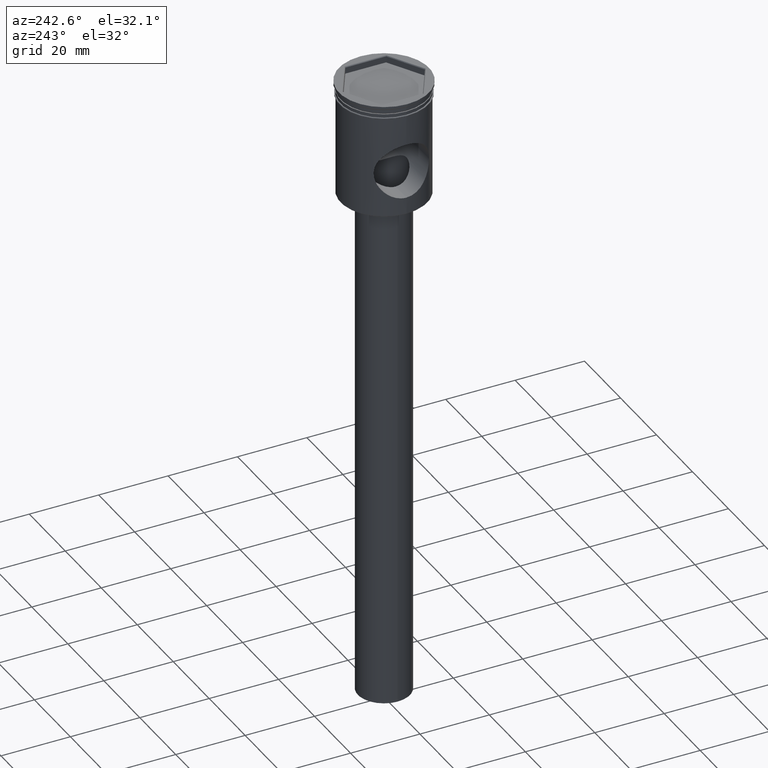
[diagram: clean part render]
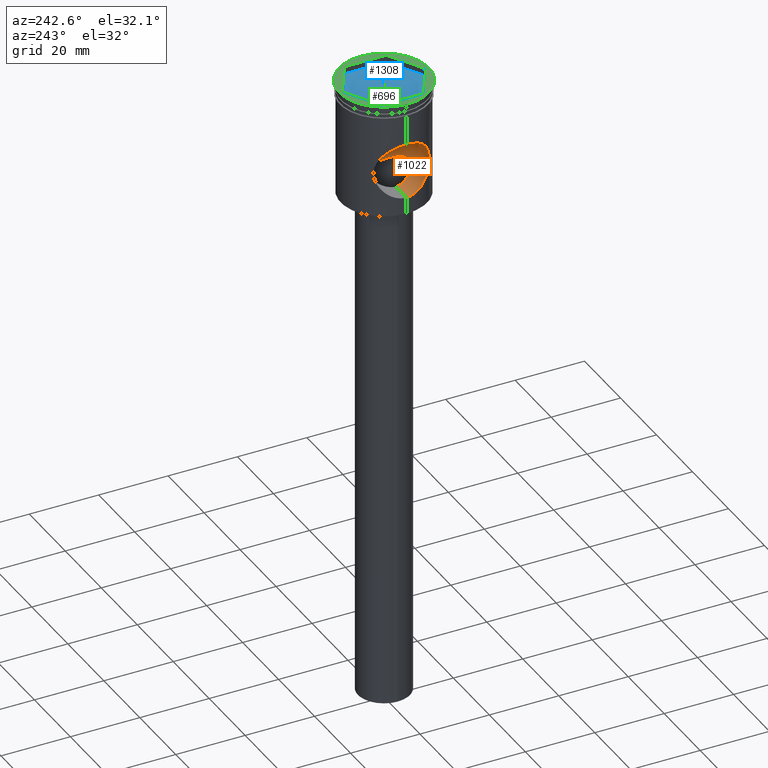
[diagram: same view with three faces highlighted in distinct colors, each labeled with its STEP entity id]
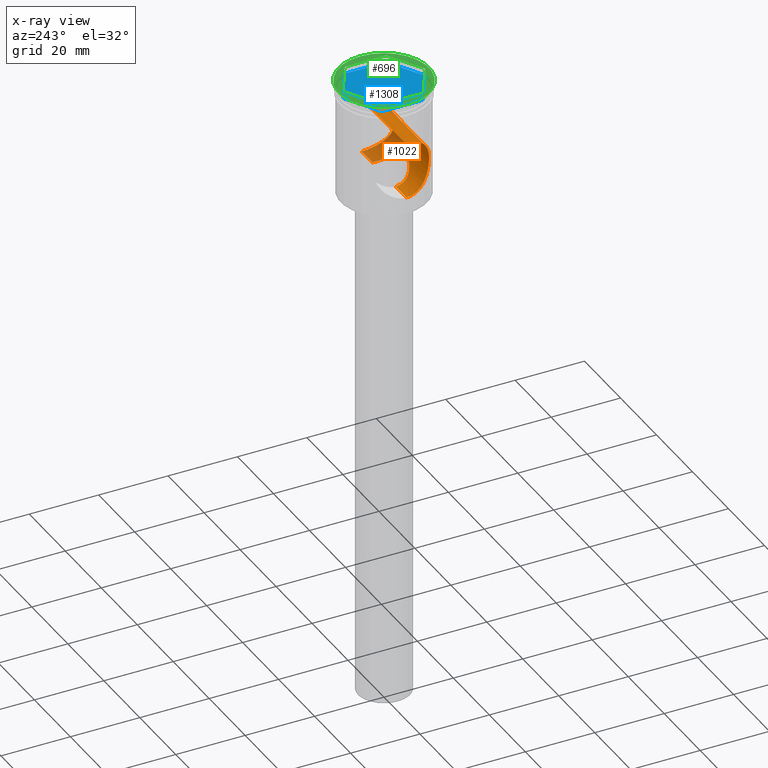
[diagram: x-ray of the same camera — body ghosted, the three highlighted faces saturated]
A machine part, auxiliary view with three faces highlighted in distinct colors.
The next image is the same camera in x-ray (body ghosted, the three faces saturated) — at least one of them is partly hidden behind the body in this view.
Their STEP definitions:

[orange] entity #1022 — the highlighted cylindrical surface (edge-blend (fillet) strip) has radius 8 mm, axis along (1, -0, -0).
#7 = CARTESIAN_POINT ( 'NONE',  ( 5.460048327681611191, -3.532776693708767013, -27.68026075794534790 ) ) ;
#41 = CARTESIAN_POINT ( 'NONE',  ( 11.97168173856675288, -3.603696557166354619, -13.35287981243517130 ) ) ;
#47 = CARTESIAN_POINT ( 'NONE',  ( 9.604845950803451160, -7.999808392904740550, -19.96072037956294309 ) ) ;
#51 = CARTESIAN_POINT ( 'NONE',  ( -9.952560460729568348, -7.563483000275684098, -17.88020587650935056 ) ) ;
#57 = CARTESIAN_POINT ( 'NONE',  ( 10.02253038761470627, -7.470924704462466259, -23.37288695449093723 ) ) ;
#63 = CARTESIAN_POINT ( 'NONE',  ( 11.82426725651903432, -4.061341696050346783, -13.60264837205234123 ) ) ;
#64 = CARTESIAN_POINT ( 'NONE',  ( -6.257325268433448606, -1.773333115719714304, -28.30400362435442929 ) ) ;
#74 = CARTESIAN_POINT ( 'NONE',  ( -9.778867081615889134, -7.786427190026567580, -18.64438907348872476 ) ) ;
#76 = CARTESIAN_POINT ( 'NONE',  ( -13.00000000000000178, 0.000000000000000000, -20.50000000000000355 ) ) ;
#78 = VECTOR ( 'NONE', #1514, 1000.000000000000000 ) ;
#80 = ORIENTED_EDGE ( 'NONE', *, *, #1377, .T. ) ;
#91 = CARTESIAN_POINT ( 'NONE',  ( -6.452300104651071955, -0.9033307322908493697, -28.46110773218289580 ) ) ;
#97 = CARTESIAN_POINT ( 'NONE',  ( 12.49104983426664894, -0.5449417703514889411, -28.48603655335807616 ) ) ;
#106 = CARTESIAN_POINT ( 'NONE',  ( 3.786615532826517860, -5.286943772991308244, -26.50592529537262720 ) ) ;
#123 = CARTESIAN_POINT ( 'NONE',  ( 0.4524990572914348030, -6.488138714140404772, -25.18034597257065954 ) ) ;
#171 = CARTESIAN_POINT ( 'NONE',  ( 10.76964293615448476, -6.354292206984882618, -15.61311065325000591 ) ) ;
#173 = CARTESIAN_POINT ( 'NONE',  ( -9.951847861737379120, -7.567903109691756391, -23.14472692481474425 ) ) ;
#179 = CARTESIAN_POINT ( 'NONE',  ( 11.74577852983650317, -4.282367724400620190, -27.26220930574857704 ) ) ;
#189 = CARTESIAN_POINT ( 'NONE',  ( -11.50119995780601201, -4.917095492503143817, -14.16884486330757653 ) ) ;
#191 = CARTESIAN_POINT ( 'NONE',  ( 9.780592607289705143, -7.784260626568321406, -22.36450508717211960 ) ) ;
#193 = CARTESIAN_POINT ( 'NONE',  ( -12.32937529947439792, -2.124696089697953205, -28.23112845639076340 ) ) ;
#203 = CARTESIAN_POINT ( 'NONE',  ( -6.500000000000000888, 0.000000000000000000, -28.50000000000000355 ) ) ;
#216 = B_SPLINE_CURVE_WITH_KNOTS ( 'NONE', 3,
 ( #430, #1236, #523, #193, #1160, #422, #884, #513, #786, #668, #1150, #1018, #299, #640, #282, #173, #1383, #1506, #653, #1122, #406, #905, #773, #74, #1135, #51, #411, #992, #1363, #912, #289, #1004, #189, #550, #1390, #804, #313, #1267, #1011, #1242, #1144, #1489, #894, #1496 ),
 .UNSPECIFIED., .F., .F.,
 ( 4, 2, 2, 2, 2, 2, 2, 2, 2, 2, 2, 2, 2, 2, 2, 2, 2, 2, 2, 2, 2, 4 ),
 ( 0.000000000000000000, 0.001610624516364221083, 0.003221249032728443033, 0.004831873549092664116, 0.006442498065456886934, 0.007247810323638999644, 0.008053122581821111486, 0.009663747098185335171, 0.01127437161454955886, 0.01207968387273167070, 0.01288499613091378254, 0.01449562064727802010, 0.01530093290546014062, 0.01610624516364226114, 0.01771686968000651952, 0.01932749419637077096, 0.02093811871273502934, 0.02174343097091715679, 0.02254874322909928425, 0.02415936774546353222, 0.02496468000364565967, 0.02576999226182778366 ),
 .UNSPECIFIED. ) ;
#219 = CARTESIAN_POINT ( 'NONE',  ( 6.132621783209935451, -2.197094703484181899, -28.20375196833109754 ) ) ;
#222 = CARTESIAN_POINT ( 'NONE',  ( 6.500000000000000888, -1.382494513617927609E-22, -28.50000000000000711 ) ) ;
#242 = CARTESIAN_POINT ( 'NONE',  ( 5.570925321596055468, -3.355586592393692502, -27.76504491683394349 ) ) ;
#250 = VERTEX_POINT ( 'NONE', #203 ) ;
#280 = CARTESIAN_POINT ( 'NONE',  ( -12.49999999999999645, 1.530843252841608374E-15, -12.50000000000000178 ) ) ;
#282 = CARTESIAN_POINT ( 'NONE',  ( -10.24633185769106802, -7.164154995734958398, -24.09758546550434133 ) ) ;
#288 = CARTESIAN_POINT ( 'NONE',  ( 10.77171733329285352, -6.344673314144587017, -25.37958406506654541 ) ) ;
#289 = CARTESIAN_POINT ( 'NONE',  ( -10.95569943340932717, -6.032167288263486249, -15.22028665405100689 ) ) ;
#299 = CARTESIAN_POINT ( 'NONE',  ( -10.68141965030588025, -6.495024738260811503, -25.17753358840529643 ) ) ;
#306 = CARTESIAN_POINT ( 'NONE',  ( -3.281965803216359667, -5.624989767360222714, -26.19662395985578840 ) ) ;
#308 = B_SPLINE_CURVE_WITH_KNOTS ( 'NONE', 3,
 ( #418, #1370, #1017, #782, #1234, #659, #1141, #1149, #41, #63, #1495, #1361, #990, #883, #902, #1469, #171, #1481, #639, #1121, #1488, #529, #47, #1029, #520, #1381, #794, #191, #410, #1002, #57, #1505, #429, #403, #288, #910, #771, #756, #1241, #179, #1008, #892, #947, #1550, #682, #557, #802, #97, #581, #1266 ),
 .UNSPECIFIED., .F., .F.,
 ( 4, 2, 2, 2, 2, 2, 2, 2, 2, 2, 2, 2, 2, 2, 2, 2, 2, 2, 2, 2, 2, 2, 2, 2, 4 ),
 ( 0.02576999226182778019, 0.02657439273090745485, 0.02737879319998712951, 0.02898759413814647884, 0.02979199460722615350, 0.03059639507630582816, 0.03140079554538549589, 0.03220519601446517055, 0.03381399695262450600, 0.03542279789078385532, 0.03703159882894319771, 0.03864039976710254010, 0.03944480023618220782, 0.04024920070526187554, 0.04105360117434153633, 0.04185800164342120405, 0.04346680258158053950, 0.04427120305066021416, 0.04507560351973988189, 0.04668440445789922427, 0.04748880492697889200, 0.04829320539605856666, 0.04990200633421790904, 0.05070640680329758371, 0.05151080727237725143 ),
 .UNSPECIFIED. ) ;
#313 = CARTESIAN_POINT ( 'NONE',  ( -12.03968295628938101, -3.370349911399050935, -13.23978673405735762 ) ) ;
#329 = CARTESIAN_POINT ( 'NONE',  ( -3.950476954517371020, -5.177406807294167912, -26.60626671336047977 ) ) ;
#356 = CARTESIAN_POINT ( 'NONE',  ( 4.412405615134871617, -4.777197050673709811, -26.91939816903312988 ) ) ;
#364 = CARTESIAN_POINT ( 'NONE',  ( 6.500000000000000888, -1.382494513617927609E-22, -28.50000000000000711 ) ) ;
#381 = VERTEX_POINT ( 'NONE', #222 ) ;
#403 = CARTESIAN_POINT ( 'NONE',  ( 10.68057655226026625, -6.496405684036827388, -25.17560278568680232 ) ) ;
#406 = CARTESIAN_POINT ( 'NONE',  ( -9.604895432773121300, -7.999748985399198986, -20.77841958597585048 ) ) ;
#410 = CARTESIAN_POINT ( 'NONE',  ( 9.833011243020196801, -7.718267162390879399, -22.62081358739450465 ) ) ;
#411 = CARTESIAN_POINT ( 'NONE',  ( -10.02037738876441075, -7.473797691934477072, -17.63469963449612266 ) ) ;
#415 = DIRECTION ( 'NONE',  ( 0.000000000000000000, 0.000000000000000000, -1.000000000000000000 ) ) ;
#418 = CARTESIAN_POINT ( 'NONE',  ( 12.49999999999999645, -3.475392982267206074E-20, -12.50000000000000178 ) ) ;
#420 = CARTESIAN_POINT ( 'NONE',  ( -5.778738657444614013, -2.983484102018041373, -27.92559829598778265 ) ) ;
#422 = CARTESIAN_POINT ( 'NONE',  ( -11.97893811598799019, -3.606041726093998090, -27.66040104288468982 ) ) ;
#429 = CARTESIAN_POINT ( 'NONE',  ( 10.41397768299478166, -6.921782864204724994, -24.54315654720842943 ) ) ;
#430 = CARTESIAN_POINT ( 'NONE',  ( -12.49999999999999645, 0.000000000000000000, -28.50000000000000355 ) ) ;
#461 = CARTESIAN_POINT ( 'NONE',  ( 5.874374812001469159, -2.790750676093712634, -28.00036436083563629 ) ) ;
#469 = CARTESIAN_POINT ( 'NONE',  ( 4.845257006710340875, -4.351692134409510082, -27.22189806687991265 ) ) ;
#488 = EDGE_CURVE ( 'NONE', #690, #753, #216, .T. ) ;
#513 = CARTESIAN_POINT ( 'NONE',  ( -11.50038868166273787, -4.919615502726673029, -26.82980181432884592 ) ) ;
#520 = CARTESIAN_POINT ( 'NONE',  ( 9.615781582082341572, -7.986738915949614714, -21.03451077291008176 ) ) ;
#523 = CARTESIAN_POINT ( 'NONE',  ( -12.46447579769008307, -1.079199628273470823, -28.44481018307722309 ) ) ;
#529 = CARTESIAN_POINT ( 'NONE',  ( 9.650481006454375787, -7.945901119098954801, -19.42646661241496986 ) ) ;
#532 = FACE_OUTER_BOUND ( 'NONE', #806, .T. ) ;
#536 = CARTESIAN_POINT ( 'NONE',  ( -5.873565130929282674, -2.792409734417655276, -27.99973087264607585 ) ) ;
#550 = CARTESIAN_POINT ( 'NONE',  ( -11.74563317290945186, -4.282692903467039791, -13.73805650301568271 ) ) ;
#557 = CARTESIAN_POINT ( 'NONE',  ( 12.42914744973298191, -1.355224675475571683, -28.38894657095907803 ) ) ;
#565 = CARTESIAN_POINT ( 'NONE',  ( -6.314744280824636569, -1.556775652073180582, -28.35017581032061429 ) ) ;
#581 = CARTESIAN_POINT ( 'NONE',  ( 12.50000000000000178, -0.2724455289350958820, -28.50000000000001066 ) ) ;
#582 = CARTESIAN_POINT ( 'NONE',  ( 2.161611939864988230, -6.133716075550486480, -25.63690197228879697 ) ) ;
#602 = CARTESIAN_POINT ( 'NONE',  ( 6.500000000000004441, -0.4507598041374321629, -28.50000000000000355 ) ) ;
#608 = CARTESIAN_POINT ( 'NONE',  ( 2.359926253138728391, -6.060024045516307467, -25.72409407202624720 ) ) ;
#609 = CARTESIAN_POINT ( 'NONE',  ( -13.00000000000000178, 0.000000000000000000, -28.50000000000000355 ) ) ;
#615 = ORIENTED_EDGE ( 'NONE', *, *, #731, .F. ) ;
#639 = CARTESIAN_POINT ( 'NONE',  ( 10.24171529436143047, -7.170737983946684047, -16.91536847051582981 ) ) ;
#640 = CARTESIAN_POINT ( 'NONE',  ( -10.41453676133786210, -6.920961814154464875, -24.54462048307798838 ) ) ;
#653 = CARTESIAN_POINT ( 'NONE',  ( -9.662429422409402946, -7.930242071786067548, -21.58801890745425922 ) ) ;
#659 = CARTESIAN_POINT ( 'NONE',  ( 12.32814927920563264, -2.133064077394895897, -12.77081634138414401 ) ) ;
#668 = CARTESIAN_POINT ( 'NONE',  ( -11.04973041360231534, -5.847541344671410180, -25.96539333561140950 ) ) ;
#682 = CARTESIAN_POINT ( 'NONE',  ( 12.32614486164619905, -2.144181392186814250, -28.22599079984304637 ) ) ;
#687 = ORIENTED_EDGE ( 'NONE', *, *, #1118, .F. ) ;
#690 = VERTEX_POINT ( 'NONE', #1464 ) ;
#697 = CARTESIAN_POINT ( 'NONE',  ( -2.170115222478395722, -6.140890886714586827, -25.63309683516175852 ) ) ;
#699 = VECTOR ( 'NONE', #1094, 1000.000000000000000 ) ;
#707 = CARTESIAN_POINT ( 'NONE',  ( 0.2279178920779981743, -6.499906671025888372, -25.16381960342393143 ) ) ;
#715 = CARTESIAN_POINT ( 'NONE',  ( 4.260691249340575304, -4.912960556298993531, -26.81582997972560634 ) ) ;
#731 = EDGE_CURVE ( 'NONE', #381, #1541, #966, .T. ) ;
#753 = VERTEX_POINT ( 'NONE', #280 ) ;
#756 = CARTESIAN_POINT ( 'NONE',  ( 11.32275814528974323, -5.311017539796695885, -26.50426606429732601 ) ) ;
#771 = CARTESIAN_POINT ( 'NONE',  ( 11.04913184632835765, -5.848685773200742233, -25.96419292266336853 ) ) ;
#773 = CARTESIAN_POINT ( 'NONE',  ( -9.650015180279874372, -7.946443617263751591, -19.43182631452544484 ) ) ;
#782 = CARTESIAN_POINT ( 'NONE',  ( 12.45680753857802969, -1.072351860696455050, -12.56763034230891307 ) ) ;
#783 = LINE ( 'NONE', #1165, #78 ) ;
#786 = CARTESIAN_POINT ( 'NONE',  ( -11.32278361962054980, -5.310903790031504812, -26.50427824932999243 ) ) ;
#794 = CARTESIAN_POINT ( 'NONE',  ( 9.694572521403603815, -7.891132293869996595, -21.84205955273027655 ) ) ;
#802 = CARTESIAN_POINT ( 'NONE',  ( 12.45574482229450020, -1.085222749987466040, -28.43070192023093412 ) ) ;
#804 = CARTESIAN_POINT ( 'NONE',  ( -11.97039897339417713, -3.607881330226538452, -13.35503377591461849 ) ) ;
#806 = EDGE_LOOP ( 'NONE', ( #1213, #80, #1172, #615, #1322, #687 ) ) ;
#817 = EDGE_CURVE ( 'NONE', #1404, #1541, #308, .T. ) ;
#829 = CARTESIAN_POINT ( 'NONE',  ( -0.4497550855590497498, -6.488366471176499672, -25.18003099772318265 ) ) ;
#835 = CARTESIAN_POINT ( 'NONE',  ( 3.947926699380110982, -5.167644156313274451, -26.60920155456273406 ) ) ;
#849 = CARTESIAN_POINT ( 'NONE',  ( 3.286837574919811988, -5.622065933885316724, -26.19947603596326857 ) ) ;
#883 = CARTESIAN_POINT ( 'NONE',  ( 11.32051845556725311, -5.304942531477345291, -14.50641544213543632 ) ) ;
#884 = CARTESIAN_POINT ( 'NONE',  ( -11.83084558445469980, -4.061114290533304860, -27.41204444593460465 ) ) ;
#892 = CARTESIAN_POINT ( 'NONE',  ( 11.97255694559600769, -3.600821400007698792, -27.64858792036709190 ) ) ;
#894 = CARTESIAN_POINT ( 'NONE',  ( -12.50000000000000000, -0.2689421781267052336, -12.50000000000000178 ) ) ;
#902 = CARTESIAN_POINT ( 'NONE',  ( 11.22925266099212926, -5.494954958430611214, -14.68017047912133144 ) ) ;
#904 = CARTESIAN_POINT ( 'NONE',  ( -5.571918240676929202, -3.353911891694667080, -27.76580776398056472 ) ) ;
#905 = CARTESIAN_POINT ( 'NONE',  ( -9.604276544737977872, -8.000492014107765115, -19.96508625629939004 ) ) ;
#909 = CARTESIAN_POINT ( 'NONE',  ( -13.00000000000000178, 9.797174393178827630E-16, -12.50000000000000178 ) ) ;
#910 = CARTESIAN_POINT ( 'NONE',  ( 10.95618371808392588, -6.020532543485915156, -25.77431588019688036 ) ) ;
#911 = CARTESIAN_POINT ( 'NONE',  ( -2.928534602587695268, -5.817527485350904470, -25.99687165202796635 ) ) ;
#912 = CARTESIAN_POINT ( 'NONE',  ( -10.77000853576665840, -6.353706358841932911, -15.61224821672882968 ) ) ;
#924 = CARTESIAN_POINT ( 'NONE',  ( -5.459419164172166994, -3.533838421339083880, -27.67977549627449463 ) ) ;
#928 = CARTESIAN_POINT ( 'NONE',  ( 12.49999999999999645, 0.000000000000000000, -28.50000000000000355 ) ) ;
#933 = CARTESIAN_POINT ( 'NONE',  ( -0.8997665330375742565, -6.441397308604645211, -25.24446944522125946 ) ) ;
#940 = CARTESIAN_POINT ( 'NONE',  ( 6.453317410054072667, -0.8987257197366886885, -28.46192756465547902 ) ) ;
#947 = CARTESIAN_POINT ( 'NONE',  ( 12.04078069653766825, -3.366168072378722176, -27.76202050384523901 ) ) ;
#966 = LINE ( 'NONE', #609, #699 ) ;
#990 = CARTESIAN_POINT ( 'NONE',  ( 11.49685725809058567, -4.911092195449596076, -14.17966420493785407 ) ) ;
#992 = CARTESIAN_POINT ( 'NONE',  ( -10.24149294623593143, -7.171072586796539028, -16.91585289741308884 ) ) ;
#997 = B_SPLINE_CURVE_WITH_KNOTS ( 'NONE', 3,
 ( #1389, #1254, #91, #565, #64, #1045, #1523, #536, #420, #904, #924, #1382, #1159, #1405, #329, #306, #911, #697, #1313, #1536, #933, #829, #1065, #707, #123, #1177, #1210, #1551, #1289, #582, #608, #1079, #849, #106, #835, #715, #356, #469, #1201, #7, #242, #1412, #461, #219, #1441, #940, #602, #364 ),
 .UNSPECIFIED., .F., .F.,
 ( 4, 2, 2, 2, 2, 2, 2, 2, 2, 2, 2, 2, 2, 2, 2, 2, 2, 2, 2, 2, 2, 2, 2, 4 ),
 ( 0.000000000000000000, 0.001349295505266007123, 0.002023943257899011444, 0.002698591010532015982, 0.003373238763165020086, 0.004047886515798024623, 0.005397182021064039770, 0.006746477526330054049, 0.008095773031596068328, 0.009445068536862083475, 0.01011971628949508845, 0.01079436404212809342, 0.01146901179476110012, 0.01214365954739410509, 0.01281830730002711180, 0.01349295505266011677, 0.01484225055792612671, 0.01551689831055913169, 0.01619154606319213319, 0.01754084156845813966, 0.01821548932109114116, 0.01889013707372414613, 0.02023943257899014567, 0.02158872808425614867 ),
 .UNSPECIFIED. ) ;
#1002 = CARTESIAN_POINT ( 'NONE',  ( 9.953764986108032176, -7.561899278404376368, -23.12434326371111837 ) ) ;
#1004 = CARTESIAN_POINT ( 'NONE',  ( -11.32358097886961801, -5.309510908151876762, -14.49404386253078236 ) ) ;
#1007 = LINE ( 'NONE', #909, #1301 ) ;
#1008 = CARTESIAN_POINT ( 'NONE',  ( 11.82492588981187076, -4.059453444830931623, -27.39848256787114877 ) ) ;
#1011 = CARTESIAN_POINT ( 'NONE',  ( -12.32774079225239028, -2.134726252461476736, -12.77147006255823491 ) ) ;
#1013 = CYLINDRICAL_SURFACE ( 'NONE', #1056, 8.000000000000000000 ) ;
#1017 = CARTESIAN_POINT ( 'NONE',  ( 12.49134899006260824, -0.5368360781239377433, -12.51349676487751417 ) ) ;
#1018 = CARTESIAN_POINT ( 'NONE',  ( -10.77326865999855166, -6.342037053953383463, -25.38299917530804706 ) ) ;
#1022 = ADVANCED_FACE ( 'NONE', ( #532 ), #1013, .F. ) ;
#1029 = CARTESIAN_POINT ( 'NONE',  ( 9.604607193058788184, -8.000095042092127073, -20.76536489131949992 ) ) ;
#1045 = CARTESIAN_POINT ( 'NONE',  ( -6.122444628364570818, -2.194197262529900438, -28.19627710528614273 ) ) ;
#1056 = AXIS2_PLACEMENT_3D ( 'NONE', #76, #1492, #415 ) ;
#1065 = CARTESIAN_POINT ( 'NONE',  ( -0.2225631351295215277, -6.500092226150140817, -25.16356098672151020 ) ) ;
#1079 = CARTESIAN_POINT ( 'NONE',  ( 2.933062102616936340, -5.815472475401217700, -25.99913457830531627 ) ) ;
#1094 = DIRECTION ( 'NONE',  ( 1.000000000000000000, -0.000000000000000000, -0.000000000000000000 ) ) ;
#1118 = EDGE_CURVE ( 'NONE', #690, #250, #783, .T. ) ;
#1121 = CARTESIAN_POINT ( 'NONE',  ( 9.947500648090194630, -7.573601934444265105, -17.87138436146137010 ) ) ;
#1122 = CARTESIAN_POINT ( 'NONE',  ( -9.616846497738412936, -7.985458352474513966, -21.05224936486945353 ) ) ;
#1130 = EDGE_CURVE ( 'NONE', #250, #381, #997, .T. ) ;
#1135 = CARTESIAN_POINT ( 'NONE',  ( -9.831927431485985025, -7.719646222588841589, -18.38418844340871061 ) ) ;
#1141 = CARTESIAN_POINT ( 'NONE',  ( 12.22865895483604959, -2.638290072440492295, -12.92921996348513858 ) ) ;
#1144 = CARTESIAN_POINT ( 'NONE',  ( -12.45636595211379039, -1.077990071471288225, -12.56832314098377168 ) ) ;
#1149 = CARTESIAN_POINT ( 'NONE',  ( 12.04102128605738287, -3.365482873782084106, -13.23757297846050918 ) ) ;
#1150 = CARTESIAN_POINT ( 'NONE',  ( -10.95759851502933024, -6.017955333637138970, -25.77724630296189190 ) ) ;
#1157 = DIRECTION ( 'NONE',  ( 1.000000000000000000, -0.000000000000000000, -0.000000000000000000 ) ) ;
#1159 = CARTESIAN_POINT ( 'NONE',  ( -4.841012717500147389, -4.356256469841109258, -27.21885929387787684 ) ) ;
#1160 = CARTESIAN_POINT ( 'NONE',  ( -12.22805391727019497, -2.640680350465368864, -28.06978779834291160 ) ) ;
#1165 = CARTESIAN_POINT ( 'NONE',  ( -13.00000000000000178, 0.000000000000000000, -28.50000000000000355 ) ) ;
#1172 = ORIENTED_EDGE ( 'NONE', *, *, #817, .T. ) ;
#1177 = CARTESIAN_POINT ( 'NONE',  ( 0.9003842640458902258, -6.441273751971399619, -25.24463642959608478 ) ) ;
#1201 = CARTESIAN_POINT ( 'NONE',  ( 5.107185914474898780, -4.041931180501665111, -27.41443527780073097 ) ) ;
#1210 = CARTESIAN_POINT ( 'NONE',  ( 1.122329589812535167, -6.406091335697207789, -25.29243831317033653 ) ) ;
#1213 = ORIENTED_EDGE ( 'NONE', *, *, #488, .T. ) ;
#1234 = CARTESIAN_POINT ( 'NONE',  ( 12.43066710745116588, -1.341388092945098531, -12.60866053316501301 ) ) ;
#1236 = CARTESIAN_POINT ( 'NONE',  ( -12.49999999999999645, -0.5455086926773379252, -28.50000000000000355 ) ) ;
#1241 = CARTESIAN_POINT ( 'NONE',  ( 11.49979938796715118, -4.920626020369351927, -26.82866744699284922 ) ) ;
#1242 = CARTESIAN_POINT ( 'NONE',  ( -12.43000214087199140, -1.347259841825425797, -12.60970857887207153 ) ) ;
#1254 = CARTESIAN_POINT ( 'NONE',  ( -6.500000000000001776, -0.4573348468601944328, -28.50000000000001066 ) ) ;
#1266 = CARTESIAN_POINT ( 'NONE',  ( 12.49999999999999645, 0.000000000000000000, -28.50000000000000355 ) ) ;
#1267 = CARTESIAN_POINT ( 'NONE',  ( -12.22838080166956054, -2.639999966342851501, -12.92964855857680995 ) ) ;
#1289 = CARTESIAN_POINT ( 'NONE',  ( 1.756904762588332947, -6.261655111009210906, -25.48015160804801127 ) ) ;
#1301 = VECTOR ( 'NONE', #1157, 1000.000000000000000 ) ;
#1313 = CARTESIAN_POINT ( 'NONE',  ( -1.759870130860044624, -6.272450313614791106, -25.46771313311987939 ) ) ;
#1322 = ORIENTED_EDGE ( 'NONE', *, *, #1130, .F. ) ;
#1361 = CARTESIAN_POINT ( 'NONE',  ( 11.58231855636714869, -4.706562070356851812, -14.02588132130155785 ) ) ;
#1363 = CARTESIAN_POINT ( 'NONE',  ( -10.41350288148657555, -6.922544769963277389, -16.45796141815630520 ) ) ;
#1370 = CARTESIAN_POINT ( 'NONE',  ( 12.49999999999999645, -0.2686376769289277044, -12.50000000000000355 ) ) ;
#1377 = EDGE_CURVE ( 'NONE', #753, #1404, #1007, .T. ) ;
#1381 = CARTESIAN_POINT ( 'NONE',  ( 9.660877953051814515, -7.932130301633685932, -21.57471352266809106 ) ) ;
#1382 = CARTESIAN_POINT ( 'NONE',  ( -5.103730894293438958, -4.046605658040481224, -27.41185527253418996 ) ) ;
#1383 = CARTESIAN_POINT ( 'NONE',  ( -9.825351555881612242, -7.728608913096384647, -22.63340818634064533 ) ) ;
#1389 = CARTESIAN_POINT ( 'NONE',  ( -6.500000000000000888, 0.000000000000000000, -28.50000000000000355 ) ) ;
#1390 = CARTESIAN_POINT ( 'NONE',  ( -11.82354718861211751, -4.063371894608727608, -13.60388813298232513 ) ) ;
#1404 = VERTEX_POINT ( 'NONE', #1504 ) ;
#1405 = CARTESIAN_POINT ( 'NONE',  ( -4.265894660066466670, -4.920824860858906469, -26.81708186829286689 ) ) ;
#1412 = CARTESIAN_POINT ( 'NONE',  ( 5.778229625922491230, -2.984498736465476032, -27.92520075921876455 ) ) ;
#1441 = CARTESIAN_POINT ( 'NONE',  ( 6.267596112280134690, -1.780520285634006328, -28.31215373482772435 ) ) ;
#1464 = CARTESIAN_POINT ( 'NONE',  ( -12.49999999999999645, 0.000000000000000000, -28.50000000000000355 ) ) ;
#1469 = CARTESIAN_POINT ( 'NONE',  ( 10.95468395994246968, -6.033861169773391708, -15.22247198273765534 ) ) ;
#1481 = CARTESIAN_POINT ( 'NONE',  ( 10.41381587689204302, -6.922042856426291024, -16.45722377159888339 ) ) ;
#1488 = CARTESIAN_POINT ( 'NONE',  ( 9.823930086259023753, -7.730428572254548492, -18.37155159375936009 ) ) ;
#1489 = CARTESIAN_POINT ( 'NONE',  ( -12.49132987171840803, -0.5383245889663377248, -12.51352599534948240 ) ) ;
#1492 = DIRECTION ( 'NONE',  ( 1.000000000000000000, -0.000000000000000000, -0.000000000000000000 ) ) ;
#1495 = CARTESIAN_POINT ( 'NONE',  ( 11.74602063590885059, -4.281685285502878635, -13.73737400827888422 ) ) ;
#1496 = CARTESIAN_POINT ( 'NONE',  ( -12.49999999999999645, 1.530843252841608374E-15, -12.50000000000000178 ) ) ;
#1504 = CARTESIAN_POINT ( 'NONE',  ( 12.49999999999999645, -3.475392982267206074E-20, -12.50000000000000178 ) ) ;
#1505 = CARTESIAN_POINT ( 'NONE',  ( 10.24506394556385303, -7.166030281330033169, -24.09455026104630804 ) ) ;
#1506 = CARTESIAN_POINT ( 'NONE',  ( -9.695983281617312599, -7.889400511741194499, -21.85205995452214367 ) ) ;
#1514 = DIRECTION ( 'NONE',  ( 1.000000000000000000, -0.000000000000000000, -0.000000000000000000 ) ) ;
#1523 = CARTESIAN_POINT ( 'NONE',  ( -6.045415444438884123, -2.397763870000254816, -28.13506671291826322 ) ) ;
#1536 = CARTESIAN_POINT ( 'NONE',  ( -1.118613416445524367, -6.406746286385391898, -25.29156067469896385 ) ) ;
#1541 = VERTEX_POINT ( 'NONE', #928 ) ;
#1550 = CARTESIAN_POINT ( 'NONE',  ( 12.22681975302657875, -2.645907749991192937, -28.06777968347509855 ) ) ;
#1551 = CARTESIAN_POINT ( 'NONE',  ( 1.549496979434392907, -6.316382589757155053, -25.41006946658093213 ) ) ;

[blue] entity #1308 — the highlighted planar face has unit normal (-0, 0, 1).
#165 = CARTESIAN_POINT ( 'NONE',  ( -8.673617379884035472E-16, -11.77794549146836367, -2.000000000000000000 ) ) ;
#182 = VERTEX_POINT ( 'NONE', #605 ) ;
#183 = VECTOR ( 'NONE', #673, 1000.000000000000114 ) ;
#238 = ORIENTED_EDGE ( 'NONE', *, *, #757, .T. ) ;
#264 = EDGE_CURVE ( 'NONE', #1232, #823, #1040, .T. ) ;
#284 = CARTESIAN_POINT ( 'NONE',  ( 10.19999999999999929, -5.888972745734185388, -2.000000000000000000 ) ) ;
#316 = DIRECTION ( 'NONE',  ( 0.000000000000000000, -1.000000000000000000, 0.000000000000000000 ) ) ;
#324 = VECTOR ( 'NONE', #316, 1000.000000000000000 ) ;
#343 = CARTESIAN_POINT ( 'NONE',  ( 1.734723475976807094E-15, 11.77794549146836367, -2.000000000000000000 ) ) ;
#346 = VECTOR ( 'NONE', #667, 1000.000000000000000 ) ;
#374 = LINE ( 'NONE', #165, #346 ) ;
#417 = ORIENTED_EDGE ( 'NONE', *, *, #264, .T. ) ;
#446 = VECTOR ( 'NONE', #525, 1000.000000000000000 ) ;
#460 = CARTESIAN_POINT ( 'NONE',  ( 10.20000000000000284, 5.888972745734183611, -2.000000000000000000 ) ) ;
#485 = ORIENTED_EDGE ( 'NONE', *, *, #747, .T. ) ;
#525 = DIRECTION ( 'NONE',  ( 2.945714899484625339E-16, 1.000000000000000000, 0.000000000000000000 ) ) ;
#530 = EDGE_CURVE ( 'NONE', #1279, #1278, #1419, .T. ) ;
#535 = LINE ( 'NONE', #1387, #1247 ) ;
#547 = DIRECTION ( 'NONE',  ( -0.8660254037844387076, 0.4999999999999997780, 0.000000000000000000 ) ) ;
#605 = CARTESIAN_POINT ( 'NONE',  ( -10.20000000000000107, -5.888972745734181835, -2.000000000000000000 ) ) ;
#606 = CARTESIAN_POINT ( 'NONE',  ( -8.673617379884035472E-16, -11.77794549146836367, -2.000000000000000000 ) ) ;
#613 = CARTESIAN_POINT ( 'NONE',  ( -10.20000000000000107, 5.888972745734180059, -2.000000000000000000 ) ) ;
#667 = DIRECTION ( 'NONE',  ( 0.8660254037844388186, 0.4999999999999996669, 0.000000000000000000 ) ) ;
#673 = DIRECTION ( 'NONE',  ( 0.8660254037844387076, -0.4999999999999998890, 0.000000000000000000 ) ) ;
#740 = CARTESIAN_POINT ( 'NONE',  ( 0.000000000000000000, 0.000000000000000000, -2.000000000000000000 ) ) ;
#747 = EDGE_CURVE ( 'NONE', #899, #1232, #374, .T. ) ;
#755 = FACE_OUTER_BOUND ( 'NONE', #1059, .T. ) ;
#757 = EDGE_CURVE ( 'NONE', #823, #1279, #535, .T. ) ;
#763 = CARTESIAN_POINT ( 'NONE',  ( 10.19999999999999929, -5.888972745734185388, -2.000000000000000000 ) ) ;
#823 = VERTEX_POINT ( 'NONE', #460 ) ;
#899 = VERTEX_POINT ( 'NONE', #606 ) ;
#919 = CARTESIAN_POINT ( 'NONE',  ( -10.20000000000000107, 5.888972745734180059, -2.000000000000000000 ) ) ;
#970 = DIRECTION ( 'NONE',  ( 1.000000000000000000, 0.000000000000000000, 0.000000000000000000 ) ) ;
#982 = PLANE ( 'NONE',  #1178 ) ;
#988 = EDGE_CURVE ( 'NONE', #1278, #182, #1263, .T. ) ;
#1040 = LINE ( 'NONE', #284, #446 ) ;
#1059 = EDGE_LOOP ( 'NONE', ( #238, #1408, #1218, #1379, #485, #417 ) ) ;
#1112 = CARTESIAN_POINT ( 'NONE',  ( 1.734723475976807094E-15, 11.77794549146836367, -2.000000000000000000 ) ) ;
#1178 = AXIS2_PLACEMENT_3D ( 'NONE', #740, #1351, #970 ) ;
#1218 = ORIENTED_EDGE ( 'NONE', *, *, #988, .T. ) ;
#1232 = VERTEX_POINT ( 'NONE', #763 ) ;
#1247 = VECTOR ( 'NONE', #547, 1000.000000000000114 ) ;
#1263 = LINE ( 'NONE', #919, #324 ) ;
#1265 = LINE ( 'NONE', #1280, #183 ) ;
#1278 = VERTEX_POINT ( 'NONE', #613 ) ;
#1279 = VERTEX_POINT ( 'NONE', #1112 ) ;
#1280 = CARTESIAN_POINT ( 'NONE',  ( -10.20000000000000107, -5.888972745734181835, -2.000000000000000000 ) ) ;
#1308 = ADVANCED_FACE ( 'NONE', ( #755 ), #982, .T. ) ;
#1309 = DIRECTION ( 'NONE',  ( -0.8660254037844387076, -0.4999999999999999445, 0.000000000000000000 ) ) ;
#1351 = DIRECTION ( 'NONE',  ( -0.000000000000000000, 0.000000000000000000, 1.000000000000000000 ) ) ;
#1353 = EDGE_CURVE ( 'NONE', #182, #899, #1265, .T. ) ;
#1379 = ORIENTED_EDGE ( 'NONE', *, *, #1353, .T. ) ;
#1387 = CARTESIAN_POINT ( 'NONE',  ( 10.20000000000000284, 5.888972745734183611, -2.000000000000000000 ) ) ;
#1408 = ORIENTED_EDGE ( 'NONE', *, *, #530, .T. ) ;
#1419 = LINE ( 'NONE', #343, #1425 ) ;
#1425 = VECTOR ( 'NONE', #1309, 999.9999999999998863 ) ;

[green] entity #696 — the highlighted planar face has unit normal (0, -0, 1).
#8 = DIRECTION ( 'NONE',  ( 0.000000000000000000, -0.000000000000000000, 1.000000000000000000 ) ) ;
#16 = DIRECTION ( 'NONE',  ( 1.000000000000000000, 0.000000000000000000, 0.000000000000000000 ) ) ;
#33 = VERTEX_POINT ( 'NONE', #128 ) ;
#67 = EDGE_CURVE ( 'NONE', #393, #870, #1316, .T. ) ;
#89 = EDGE_CURVE ( 'NONE', #1272, #33, #1084, .T. ) ;
#126 = CARTESIAN_POINT ( 'NONE',  ( 0.09999999999998210320, -11.95115057222522204, 0.000000000000000000 ) ) ;
#128 = CARTESIAN_POINT ( 'NONE',  ( -10.39999999999996660, -6.004442799572089484, 0.000000000000000000 ) ) ;
#145 = CARTESIAN_POINT ( 'NONE',  ( 0.000000000000000000, 0.000000000000000000, 0.000000000000000000 ) ) ;
#180 = AXIS2_PLACEMENT_3D ( 'NONE', #145, #8, #16 ) ;
#225 = CARTESIAN_POINT ( 'NONE',  ( -10.29999999999998472, -6.062177826491041976, 0.000000000000000000 ) ) ;
#234 = VERTEX_POINT ( 'NONE', #1269 ) ;
#253 = LINE ( 'NONE', #1319, #1104 ) ;
#260 = CARTESIAN_POINT ( 'NONE',  ( 10.39999999999996838, 6.004442799572093037, 0.000000000000000000 ) ) ;
#266 = CARTESIAN_POINT ( 'NONE',  ( -13.00000000000000178, 1.592040838891559293E-15, 0.000000000000000000 ) ) ;
#278 = ORIENTED_EDGE ( 'NONE', *, *, #397, .T. ) ;
#342 = DIRECTION ( 'NONE',  ( -2.945714899484625339E-16, -1.000000000000000000, 0.000000000000000000 ) ) ;
#349 = AXIS2_PLACEMENT_3D ( 'NONE', #1016, #891, #1380 ) ;
#360 = LINE ( 'NONE', #844, #395 ) ;
#384 = VERTEX_POINT ( 'NONE', #942 ) ;
#387 = FACE_BOUND ( 'NONE', #1507, .T. ) ;
#393 = VERTEX_POINT ( 'NONE', #1459 ) ;
#395 = VECTOR ( 'NONE', #676, 1000.000000000000000 ) ;
#396 = CARTESIAN_POINT ( 'NONE',  ( -4.673001713593498173E-16, -12.00888559914417542, 0.000000000000000000 ) ) ;
#397 = EDGE_CURVE ( 'NONE', #684, #234, #1156, .T. ) ;
#444 = EDGE_CURVE ( 'NONE', #33, #393, #360, .T. ) ;
#473 = LINE ( 'NONE', #126, #1248 ) ;
#501 = EDGE_LOOP ( 'NONE', ( #1163, #278 ) ) ;
#569 = DIRECTION ( 'NONE',  ( -0.8660254037844388186, -0.4999999999999996669, 0.000000000000000000 ) ) ;
#601 = DIRECTION ( 'NONE',  ( 0.8660254037844388186, -0.4999999999999997780, 0.000000000000000000 ) ) ;
#612 = ORIENTED_EDGE ( 'NONE', *, *, #898, .T. ) ;
#618 = VECTOR ( 'NONE', #705, 1000.000000000000000 ) ;
#635 = CARTESIAN_POINT ( 'NONE',  ( 10.29999999999998828, 6.062177826491044641, 0.000000000000000000 ) ) ;
#676 = DIRECTION ( 'NONE',  ( 0.000000000000000000, 1.000000000000000000, 0.000000000000000000 ) ) ;
#680 = ORIENTED_EDGE ( 'NONE', *, *, #67, .T. ) ;
#684 = VERTEX_POINT ( 'NONE', #266 ) ;
#696 = ADVANCED_FACE ( 'NONE', ( #387, #869 ), #1192, .T. ) ;
#705 = DIRECTION ( 'NONE',  ( -0.8660254037844387076, 0.4999999999999998335, 0.000000000000000000 ) ) ;
#748 = DIRECTION ( 'NONE',  ( -0.000000000000000000, -0.000000000000000000, 1.000000000000000000 ) ) ;
#779 = AXIS2_PLACEMENT_3D ( 'NONE', #1103, #748, #959 ) ;
#788 = ORIENTED_EDGE ( 'NONE', *, *, #1088, .T. ) ;
#821 = DIRECTION ( 'NONE',  ( 0.8660254037844387076, 0.4999999999999998890, 0.000000000000000000 ) ) ;
#839 = CARTESIAN_POINT ( 'NONE',  ( -0.09999999999998192279, 11.95115057222522204, 0.000000000000000000 ) ) ;
#844 = CARTESIAN_POINT ( 'NONE',  ( -10.39999999999996660, 5.888972745734180059, 0.000000000000000000 ) ) ;
#869 = FACE_OUTER_BOUND ( 'NONE', #501, .T. ) ;
#870 = VERTEX_POINT ( 'NONE', #1126 ) ;
#875 = ORIENTED_EDGE ( 'NONE', *, *, #1142, .T. ) ;
#891 = DIRECTION ( 'NONE',  ( -0.000000000000000000, -0.000000000000000000, 1.000000000000000000 ) ) ;
#898 = EDGE_CURVE ( 'NONE', #870, #1204, #1199, .T. ) ;
#901 = VECTOR ( 'NONE', #601, 1000.000000000000114 ) ;
#942 = CARTESIAN_POINT ( 'NONE',  ( 10.39999999999996483, -6.004442799572092149, 0.000000000000000000 ) ) ;
#959 = DIRECTION ( 'NONE',  ( 1.000000000000000000, 0.000000000000000000, 0.000000000000000000 ) ) ;
#1006 = ORIENTED_EDGE ( 'NONE', *, *, #444, .T. ) ;
#1016 = CARTESIAN_POINT ( 'NONE',  ( 0.000000000000000000, 0.000000000000000000, 0.000000000000000000 ) ) ;
#1030 = CIRCLE ( 'NONE', #349, 13.00000000000000178 ) ;
#1084 = LINE ( 'NONE', #225, #618 ) ;
#1088 = EDGE_CURVE ( 'NONE', #384, #1272, #473, .T. ) ;
#1103 = CARTESIAN_POINT ( 'NONE',  ( 0.000000000000000000, 0.000000000000000000, 0.000000000000000000 ) ) ;
#1104 = VECTOR ( 'NONE', #342, 1000.000000000000000 ) ;
#1126 = CARTESIAN_POINT ( 'NONE',  ( 3.914804678345490052E-15, 12.00888559914417719, 0.000000000000000000 ) ) ;
#1142 = EDGE_CURVE ( 'NONE', #1204, #384, #253, .T. ) ;
#1156 = CIRCLE ( 'NONE', #779, 13.00000000000000178 ) ;
#1163 = ORIENTED_EDGE ( 'NONE', *, *, #1467, .T. ) ;
#1192 = PLANE ( 'NONE',  #180 ) ;
#1199 = LINE ( 'NONE', #635, #901 ) ;
#1204 = VERTEX_POINT ( 'NONE', #260 ) ;
#1245 = VECTOR ( 'NONE', #821, 1000.000000000000000 ) ;
#1248 = VECTOR ( 'NONE', #569, 1000.000000000000000 ) ;
#1269 = CARTESIAN_POINT ( 'NONE',  ( 13.00000000000000178, 0.000000000000000000, 0.000000000000000000 ) ) ;
#1272 = VERTEX_POINT ( 'NONE', #396 ) ;
#1316 = LINE ( 'NONE', #839, #1245 ) ;
#1319 = CARTESIAN_POINT ( 'NONE',  ( 10.39999999999996483, -5.888972745734185388, 0.000000000000000000 ) ) ;
#1380 = DIRECTION ( 'NONE',  ( 1.000000000000000000, 0.000000000000000000, 0.000000000000000000 ) ) ;
#1459 = CARTESIAN_POINT ( 'NONE',  ( -10.39999999999996660, 6.004442799572087708, 0.000000000000000000 ) ) ;
#1467 = EDGE_CURVE ( 'NONE', #234, #684, #1030, .T. ) ;
#1479 = ORIENTED_EDGE ( 'NONE', *, *, #89, .T. ) ;
#1507 = EDGE_LOOP ( 'NONE', ( #1479, #1006, #680, #612, #875, #788 ) ) ;